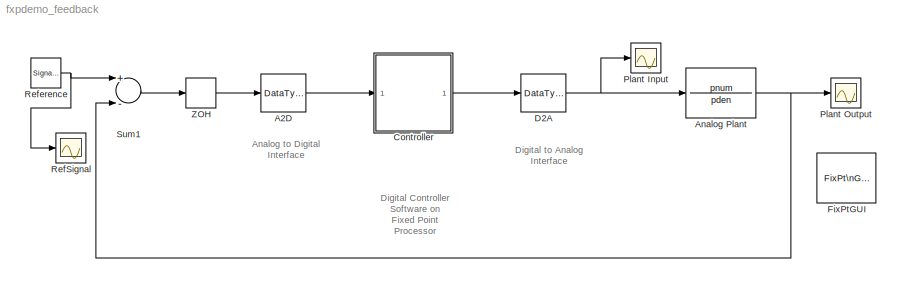
MODEL fxpdemo_feedback
KIND model
CONFIG AbsTol = 1e-6
CONFIG FixedStep = tsamp
CONFIG MaxStep = auto
CONFIG MinStep = auto
CONFIG PreLoadFcn = preload_feedback
CONFIG RelTol = 1e-3
CONFIG Solver = ode4
CONFIG SolverMode = SingleTasking
CONFIG StartTime = 0.0
CONFIG StopTime = 4-2*tsamp
BLOCK [DataTypeConversion] A2D
  LockScale = on
  OutDataType = sfix(8)
  OutDataTypeMode = Specify via dialog
  OutScaling = 2^-4
  RndMeth = Nearest
BLOCK [TransferFcn] Analog Plant
  Denominator = pden
  Numerator = pnum
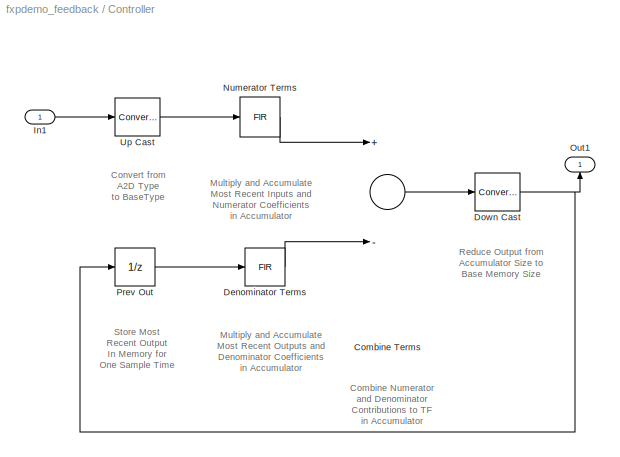
BLOCK [SubSystem] Controller
  Ports = [1, 1]
  TreatAsAtomicUnit = off
BLOCK [Sum] Controller/Combine Terms
  InputSameDT = off
  Inputs = +-
  OutDataType = AccumType
  OutDataTypeMode = Specify via dialog
  OutScaling = 2^(-12)
  Ports = [2, 1]
  ShowAdditionalParam = on
BLOCK [Reference] Controller/Denominator Terms  REF=fixpt_lib_4/Filters/FIR  (lib defined in mdl_ef9dacb0d1df)
  DoSatur = on
  GainDataType = BaseType
  GainDataTypeScalingMode = Specify via dialog
  GainScaling = 2^-14
  LockScale = off
  MatRadixGroup = Best Precision: Element-wise
  OutDataType = AccumType
  OutScaling = 2^(-12)
  OutputDataTypeScalingMode = Specify via dialog
  Ports = [1, 1]
  RndMeth = Floor
  SourceBlock = fixpt_lib_4/Filters/FIR
  SourceType = Fixed-Point FIR
  mgainval = dden(2:length(dden))
  samptime = tsamp
  vinit = 0.0
BLOCK [Reference] Controller/Down Cast  REF=fixpt_lib_4/Data Type/Conversion  (lib defined in mdl_ef9dacb0d1df)
  ConvertRealWorld = Real World Value
  DoSatur = on
  LockScale = off
  OutDataType = BaseType
  OutScaling = 2^(-5)
  OutputDataTypeScalingMode = Specify via dialog
  Ports = [1, 1]
  RndMeth = Floor
  SourceBlock = fixpt_lib_4/Data Type/Conversion
  SourceType = Fixed-Point to Fixed-Point Conversion
BLOCK [Inport] Controller/In1
  IconDisplay = Port number
BLOCK [Reference] Controller/Numerator Terms  REF=fixpt_lib_4/Filters/FIR  (lib defined in mdl_ef9dacb0d1df)
  DoSatur = on
  GainDataType = BaseType
  GainDataTypeScalingMode = Specify via dialog
  GainScaling = 2^-14
  LockScale = off
  MatRadixGroup = Best Precision: Element-wise
  OutDataType = AccumType
  OutScaling = 2^(-12)
  OutputDataTypeScalingMode = Specify via dialog
  Ports = [1, 1]
  RndMeth = Floor
  SourceBlock = fixpt_lib_4/Filters/FIR
  SourceType = Fixed-Point FIR
  mgainval = dnum
  samptime = tsamp
  vinit = 0.0
BLOCK [Outport] Controller/Out1
  IconDisplay = Port number
  InitialOutput = 0
BLOCK [UnitDelay] Controller/Prev Out
  SampleTime = tsamp
  X0 = 0.0
BLOCK [Reference] Controller/Up Cast  REF=fixpt_lib_4/Data Type/Conversion  (lib defined in mdl_ef9dacb0d1df)
  ConvertRealWorld = Real World Value
  DoSatur = on
  LockScale = off
  OutDataType = BaseType
  OutScaling = 2^(-14)
  OutputDataTypeScalingMode = Specify via dialog
  Ports = [1, 1]
  RndMeth = Floor
  SourceBlock = fixpt_lib_4/Data Type/Conversion
  SourceType = Fixed-Point to Fixed-Point Conversion
BLOCK [DataTypeConversion] D2A
  OutDataTypeMode = double
  RndMeth = Floor
  SaturateOnIntegerOverflow = off
BLOCK [Reference] FixPtGUI  REF=fixpt_lib_3p1/FixPt\nGUI
  Ports = []
  ShowPortLabels = on
  SourceBlock = fixpt_lib_3p1/FixPt\nGUI
  SourceType = Fixed-Point GUI
BLOCK [Scope] Plant Input
  DataFormat = StructureWithTime
  NumInputPorts = 1
  Ports = [1]
  SaveName = PlantInput
  SaveToWorkspace = on
  TickLabels = on
BLOCK [Scope] Plant Output
  DataFormat = StructureWithTime
  NumInputPorts = 1
  Ports = [1]
  SaveName = PlantOutput
  SaveToWorkspace = on
  TickLabels = on
  YMax = 2.5
  YMin = -4
BLOCK [Scope] RefSignal
  DataFormat = StructureWithTime
  NumInputPorts = 1
  Ports = [1]
  SaveName = ReferenceSignal
  SaveToWorkspace = on
  TickLabels = on
  TimeRange = 4
  YMax = 2
  YMin = -2
  ZoomMode = yonly
BLOCK [SignalGenerator] Reference
  Amplitude = 2
  Frequency = 0.25
  Ports = [0, 1]
  WaveForm = square
BLOCK [Sum] Sum1
  Inputs = +-
  Ports = [2, 1]
BLOCK [ZeroOrderHold] ZOH
  SampleTime = tsamp
ANNOTATION (root): Analog to Digital\nInterface
ANNOTATION (root): Digital Controller\nSoftware on\nFixed Point \nProcessor
ANNOTATION (root): Digital to Analog\nInterface
ANNOTATION Controller: Combine Numerator \nand Denominator \nContributions to TF\nin Accumulator
ANNOTATION Controller: Convert from \nA2D Type\nto BaseType
ANNOTATION Controller: Multiply and Accumulate\nMost Recent Inputs and\nNumerator Coefficients\nin Accumulator
ANNOTATION Controller: Multiply and Accumulate\nMost Recent Outputs and\nDenominator Coefficients\nin Accumulator
ANNOTATION Controller: Reduce Output from\nAccumulator Size to\nBase Memory Size
ANNOTATION Controller: Store Most\nRecent Output\nIn Memory for\nOne Sample Time
LINE A2D:1 -> Controller:1
NET Analog Plant:1 -> Plant Output:1, Sum1:2
LINE Controller/Combine Terms:1 -> Controller/Down Cast:1
LINE Controller/Denominator Terms:1 -> Controller/Combine Terms:2
NET Controller/Down Cast:1 -> Controller/Out1:1, Controller/Prev Out:1
LINE Controller/In1:1 -> Controller/Up Cast:1
LINE Controller/Numerator Terms:1 -> Controller/Combine Terms:1
LINE Controller/Prev Out:1 -> Controller/Denominator Terms:1
LINE Controller/Up Cast:1 -> Controller/Numerator Terms:1
LINE Controller:1 -> D2A:1
NET D2A:1 -> Analog Plant:1, Plant Input:1
NET Reference:1 -> RefSignal:1, Sum1:1
LINE Sum1:1 -> ZOH:1
LINE ZOH:1 -> A2D:1
note: NET lines group one-source signal fan-out (src -> all destinations, sorted); 1:1 wires keep LINE
